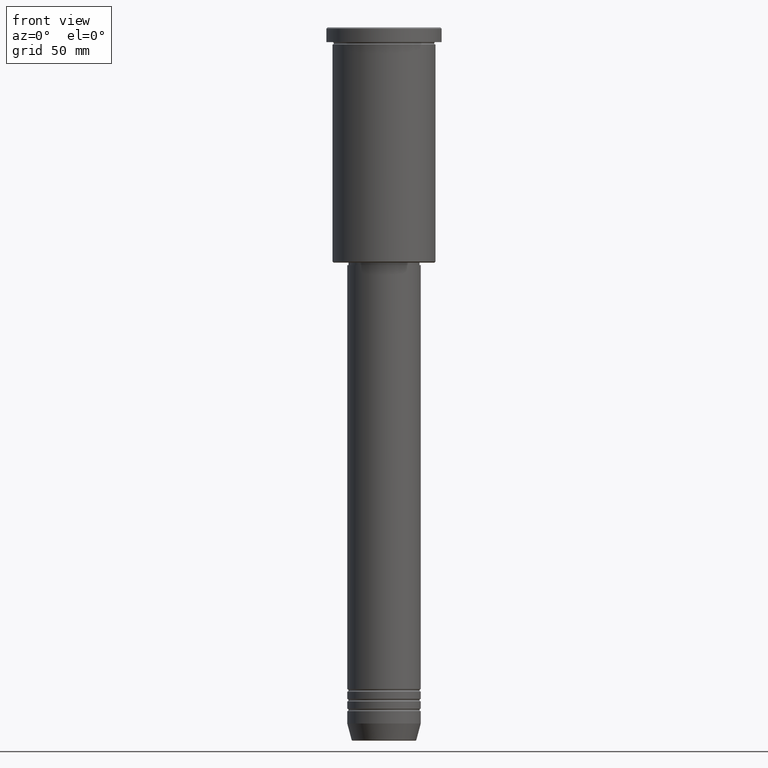
[diagram: clean part render]
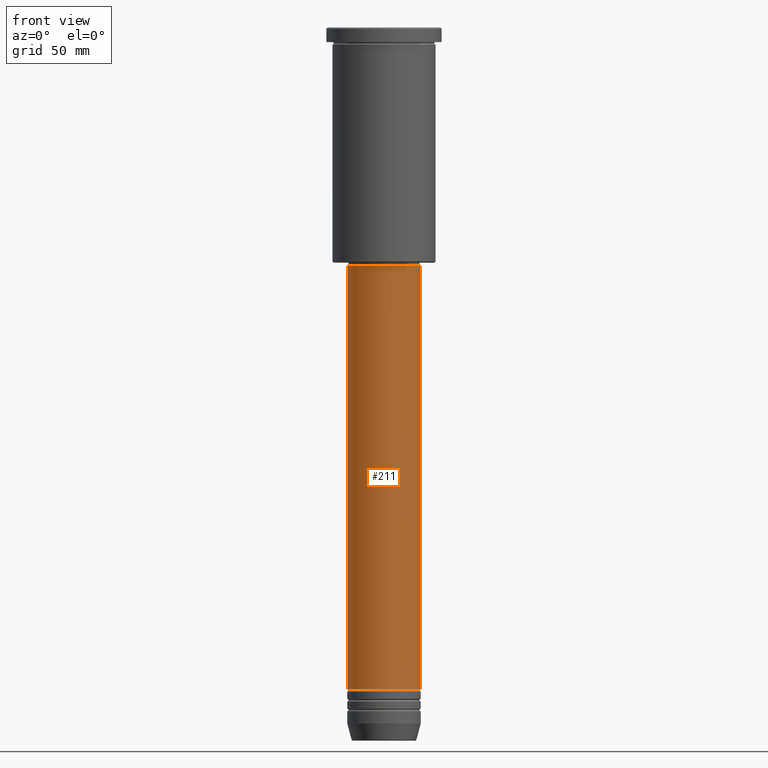
[diagram: same view with one face highlighted and labeled with its STEP entity id]
A machine part, front view. The second image highlights one B-rep face of the part: STEP entity #211.
In plain terms, the highlighted cylindrical surface (partial cylindrical patch) has radius 15 mm, axis along (-0, -0, 1).
Its self-contained STEP definition (entity closure, byte-faithful):
#27 = AXIS2_PLACEMENT_3D ( 'NONE', #234, #965, #150 ) ;
#65 = AXIS2_PLACEMENT_3D ( 'NONE', #712, #902, #367 ) ;
#88 = VECTOR ( 'NONE', #786, 1000.000000000000000 ) ;
#96 = CYLINDRICAL_SURFACE ( 'NONE', #65, 15.00000000000000000 ) ;
#104 = CARTESIAN_POINT ( 'NONE',  ( -15.00000000000000000, 1.836970198721029589E-15, -96.99999999999994316 ) ) ;
#150 = DIRECTION ( 'NONE',  ( 1.000000000000000000, 0.000000000000000000, 0.000000000000000000 ) ) ;
#153 = EDGE_CURVE ( 'NONE', #346, #1174, #978, .T. ) ;
#159 = CARTESIAN_POINT ( 'NONE',  ( 15.00000000000000000, 0.000000000000000000, -96.99999999999994316 ) ) ;
#171 = VERTEX_POINT ( 'NONE', #954 ) ;
#211 = ADVANCED_FACE ( 'NONE', ( #823 ), #96, .T. ) ;
#234 = CARTESIAN_POINT ( 'NONE',  ( 0.000000000000000000, 0.000000000000000000, -269.9999999999998863 ) ) ;
#273 = ORIENTED_EDGE ( 'NONE', *, *, #935, .F. ) ;
#309 = LINE ( 'NONE', #331, #88 ) ;
#312 = CARTESIAN_POINT ( 'NONE',  ( -15.00000000000000000, 1.836970198721029589E-15, -269.9999999999998863 ) ) ;
#322 = CARTESIAN_POINT ( 'NONE',  ( 0.000000000000000000, 0.000000000000000000, -96.99999999999994316 ) ) ;
#331 = CARTESIAN_POINT ( 'NONE',  ( 15.00000000000000000, 0.000000000000000000, 0.000000000000000000 ) ) ;
#346 = VERTEX_POINT ( 'NONE', #104 ) ;
#367 = DIRECTION ( 'NONE',  ( 1.000000000000000000, 0.000000000000000000, 0.000000000000000000 ) ) ;
#466 = EDGE_LOOP ( 'NONE', ( #273, #713, #768, #659 ) ) ;
#480 = EDGE_CURVE ( 'NONE', #171, #1174, #309, .T. ) ;
#510 = DIRECTION ( 'NONE',  ( -0.000000000000000000, -0.000000000000000000, 1.000000000000000000 ) ) ;
#637 = EDGE_CURVE ( 'NONE', #1051, #171, #1080, .T. ) ;
#659 = ORIENTED_EDGE ( 'NONE', *, *, #153, .F. ) ;
#684 = LINE ( 'NONE', #1145, #985 ) ;
#695 = AXIS2_PLACEMENT_3D ( 'NONE', #322, #787, #1047 ) ;
#712 = CARTESIAN_POINT ( 'NONE',  ( 0.000000000000000000, 0.000000000000000000, 0.000000000000000000 ) ) ;
#713 = ORIENTED_EDGE ( 'NONE', *, *, #637, .T. ) ;
#768 = ORIENTED_EDGE ( 'NONE', *, *, #480, .T. ) ;
#786 = DIRECTION ( 'NONE',  ( -0.000000000000000000, -0.000000000000000000, 1.000000000000000000 ) ) ;
#787 = DIRECTION ( 'NONE',  ( -0.000000000000000000, -0.000000000000000000, 1.000000000000000000 ) ) ;
#823 = FACE_OUTER_BOUND ( 'NONE', #466, .T. ) ;
#902 = DIRECTION ( 'NONE',  ( -0.000000000000000000, -0.000000000000000000, 1.000000000000000000 ) ) ;
#935 = EDGE_CURVE ( 'NONE', #1051, #346, #684, .T. ) ;
#954 = CARTESIAN_POINT ( 'NONE',  ( 15.00000000000000000, 0.000000000000000000, -269.9999999999998863 ) ) ;
#965 = DIRECTION ( 'NONE',  ( -0.000000000000000000, -0.000000000000000000, 1.000000000000000000 ) ) ;
#978 = CIRCLE ( 'NONE', #695, 15.00000000000000000 ) ;
#985 = VECTOR ( 'NONE', #510, 1000.000000000000000 ) ;
#1047 = DIRECTION ( 'NONE',  ( 1.000000000000000000, 0.000000000000000000, 0.000000000000000000 ) ) ;
#1051 = VERTEX_POINT ( 'NONE', #312 ) ;
#1080 = CIRCLE ( 'NONE', #27, 15.00000000000000000 ) ;
#1145 = CARTESIAN_POINT ( 'NONE',  ( -15.00000000000000000, 1.836970198721029589E-15, 0.000000000000000000 ) ) ;
#1174 = VERTEX_POINT ( 'NONE', #159 ) ;